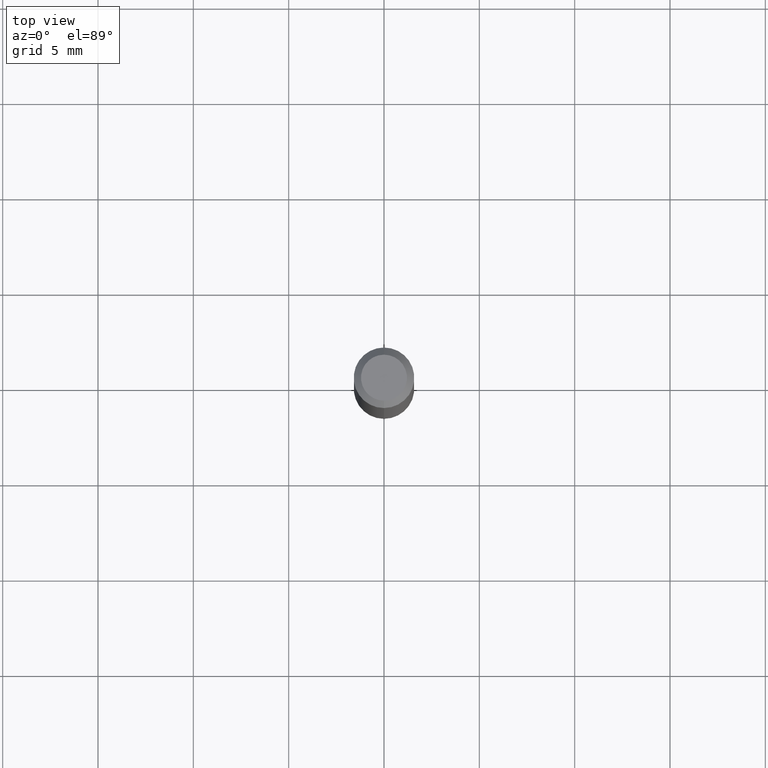
[diagram: clean part render]
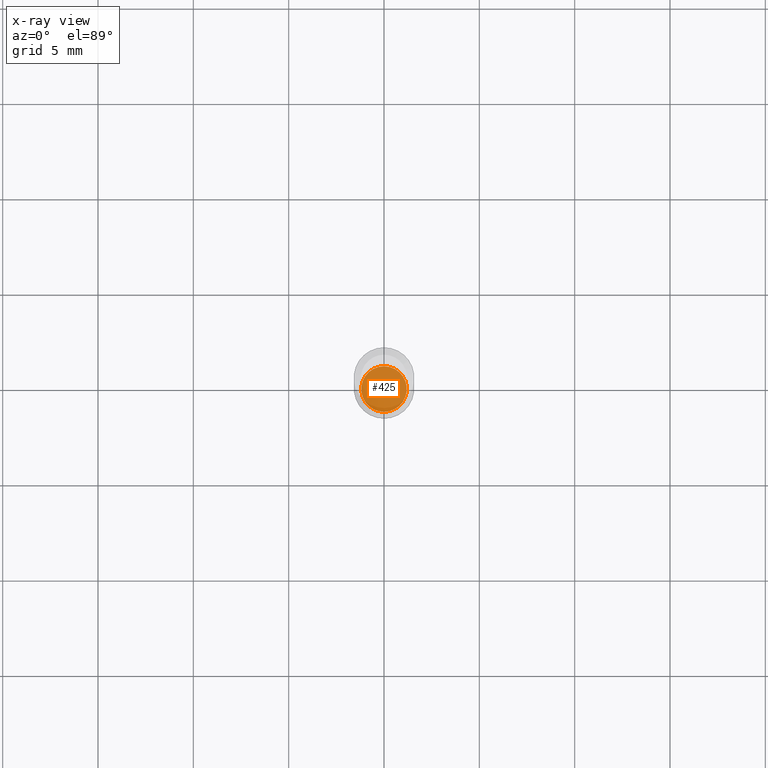
[diagram: x-ray — body ghosted, one internal face saturated and labeled with its STEP entity id]
A machine part, top view, then the same camera in x-ray: the body is ghosted and one INTERNAL B-rep face — a face not visible from any outside direction — is saturated and labeled: STEP entity #425.
In plain terms, the highlighted planar face has unit normal (-0, 0, 1).
Its self-contained STEP definition (entity closure, byte-faithful):
#8 = EDGE_CURVE ( 'NONE', #116, #125, #183, .T. ) ;
#12 = CARTESIAN_POINT ( 'NONE',  ( 3.357314426466801272E-16, 0.04699999999999526085, -1.357000000000000206 ) ) ;
#20 = CARTESIAN_POINT ( 'NONE',  ( 3.318513853280386005E-29, -4.737922013621053699E-15, -1.356999999999999984 ) ) ;
#27 = CARTESIAN_POINT ( 'NONE',  ( 3.318513853280386005E-29, -4.737922013621053699E-15, -1.356999999999999984 ) ) ;
#36 = DIRECTION ( 'NONE',  ( -2.445478152748994695E-29, 3.491467954031727558E-15, 1.000000000000000000 ) ) ;
#52 = CARTESIAN_POINT ( 'NONE',  ( -3.281992458512213224E-16, -0.04700000000000473244, -1.356999999999999762 ) ) ;
#70 = DIRECTION ( 'NONE',  ( -6.982962677686265922E-15, -1.000000000000000000, 3.491467954031727558E-15 ) ) ;
#116 = VERTEX_POINT ( 'NONE', #12 ) ;
#125 = VERTEX_POINT ( 'NONE', #52 ) ;
#173 = DIRECTION ( 'NONE',  ( -6.982962677686266711E-15, -1.000000000000000000, 5.812442539711199378E-15 ) ) ;
#176 = DIRECTION ( 'NONE',  ( -2.445478152748994135E-29, 3.491467954031727558E-15, 1.000000000000000000 ) ) ;
#183 = CIRCLE ( 'NONE', #194, 0.04699999999999999317 ) ;
#194 = AXIS2_PLACEMENT_3D ( 'NONE', #402, #36, #474 ) ;
#250 = DIRECTION ( 'NONE',  ( -2.445478152748994695E-29, 3.491467954031727558E-15, 1.000000000000000000 ) ) ;
#251 = PLANE ( 'NONE',  #359 ) ;
#283 = EDGE_LOOP ( 'NONE', ( #396, #304 ) ) ;
#304 = ORIENTED_EDGE ( 'NONE', *, *, #8, .F. ) ;
#359 = AXIS2_PLACEMENT_3D ( 'NONE', #27, #176, #70 ) ;
#384 = AXIS2_PLACEMENT_3D ( 'NONE', #20, #250, #173 ) ;
#396 = ORIENTED_EDGE ( 'NONE', *, *, #488, .F. ) ;
#402 = CARTESIAN_POINT ( 'NONE',  ( 3.318513853280386005E-29, -4.737922013621053699E-15, -1.356999999999999984 ) ) ;
#425 = ADVANCED_FACE ( 'NONE', ( #459 ), #251, .F. ) ;
#457 = CIRCLE ( 'NONE', #384, 0.04699999999999999317 ) ;
#459 = FACE_OUTER_BOUND ( 'NONE', #283, .T. ) ;
#474 = DIRECTION ( 'NONE',  ( -6.982962677686266711E-15, -1.000000000000000000, 5.812442539711199378E-15 ) ) ;
#488 = EDGE_CURVE ( 'NONE', #125, #116, #457, .T. ) ;